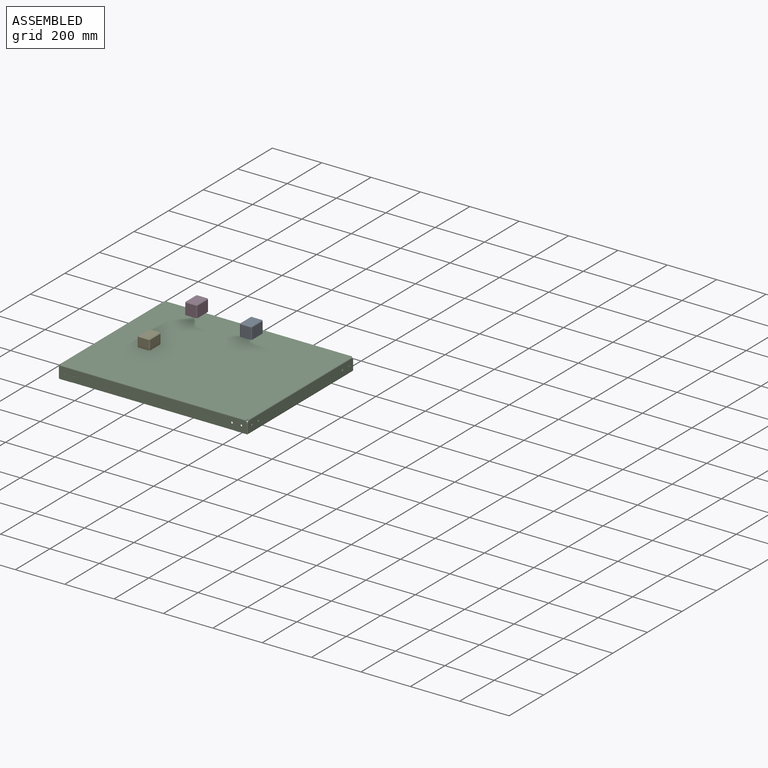
[diagram: assembled view]
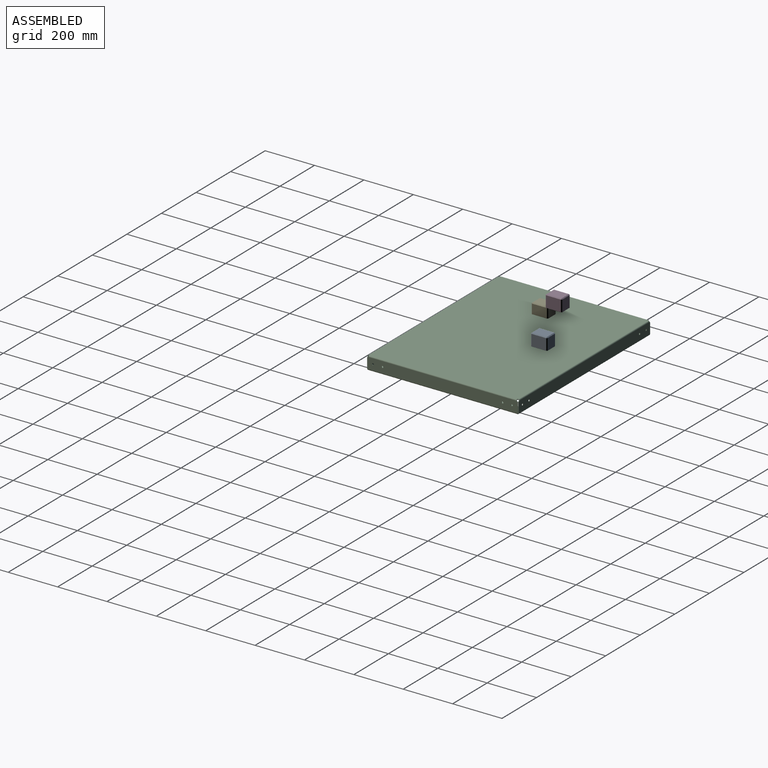
[diagram: assembled view, second angle]
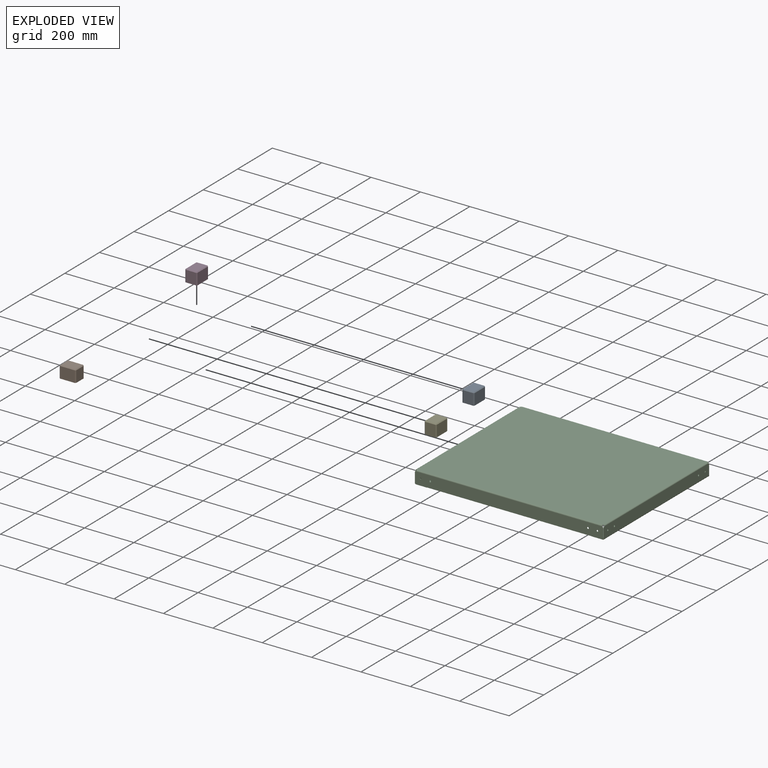
[diagram: exploded view]
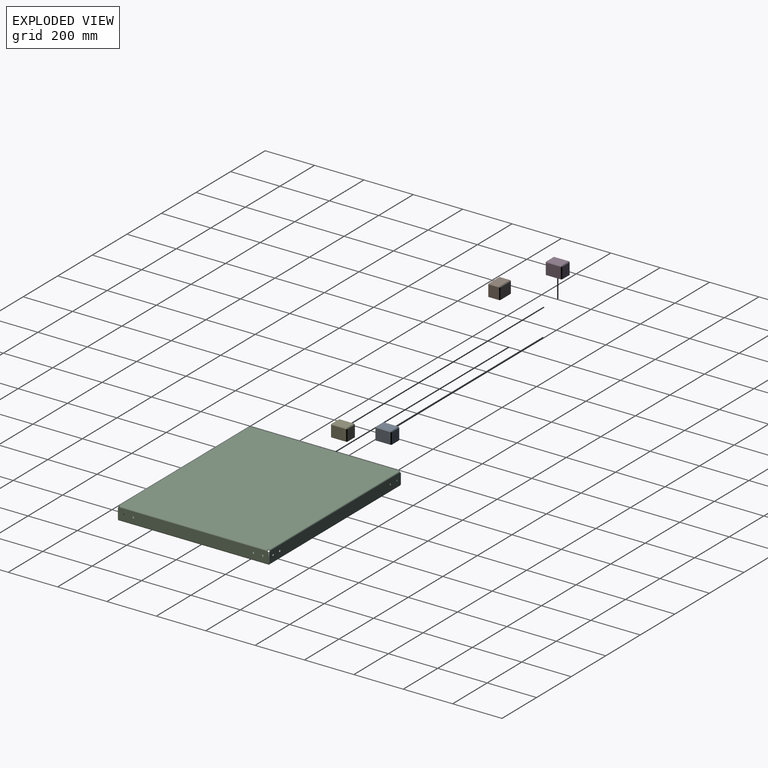
[diagram: exploded view, second angle]
ASSEMBLY  parts=5 mates=2
PART A: 18 faces, bbox 49.2x66.7x49.2 mm
  f0: plane 60.33x46.04mm, normal (1,0,0), area 2777.2mm2, adj f3,f6,f8,f9
  f1: plane 60.33x42.86mm, normal (0,0,1), area 2585.7mm2, adj f9,f10,f14,f15
  f2: plane 60.33x46.04mm, normal (-1,0,0), area 2777.2mm2, adj f3,f11,f15,f17
  f3: plane 66.68x49.21mm, normal (0,0,-1), area 3261.1mm2, adj f0,f2,f4,f5,f6,f8,f11,f17
  f4: plane 46.04x42.86mm, normal (0,1,0), area 1973.3mm2, adj f3,f8,f14,f17
  f5: plane 46.04x42.86mm, normal (0,-1,0), area 1973.3mm2, adj f3,f6,f10,f11
  f6: plane 46.04x3.18mm, normal (0.71,-0.71,0), area 206.7mm2, adj f0,f3,f5,f7
  f7: plane 3.18x3.18mm, normal (0.58,-0.58,0.58), area 8.7mm2, adj f6,f9,f10
  f8: plane 46.04x3.18mm, normal (0.71,0.71,0), area 206.7mm2, adj f0,f3,f4,f12
  f9: plane 60.33x3.18mm, normal (0.71,0,0.71), area 270.9mm2, adj f0,f1,f7,f12
  f10: plane 42.86x3.18mm, normal (0,-0.71,0.71), area 192.5mm2, adj f1,f5,f7,f13
  f11: plane 46.04x3.18mm, normal (-0.71,-0.71,0), area 206.7mm2, adj f2,f3,f5,f13
  f12: plane 3.18x3.18mm, normal (0.58,0.58,0.58), area 8.7mm2, adj f8,f9,f14
  f13: plane 3.18x3.18mm, normal (-0.58,-0.58,0.58), area 8.7mm2, adj f10,f11,f15
  f14: plane 42.86x3.18mm, normal (0,0.71,0.71), area 192.5mm2, adj f1,f4,f12,f16
  f15: plane 60.33x3.18mm, normal (-0.71,0,0.71), area 270.9mm2, adj f1,f2,f13,f16
  f16: plane 3.18x3.18mm, normal (-0.58,0.58,0.58), area 8.7mm2, adj f14,f15,f17
  f17: plane 46.04x3.18mm, normal (-0.71,0.71,0), area 206.7mm2, adj f2,f3,f4,f16
PART B: same geometry as A
PART C: 102 faces, bbox 766x613.6x53.2 mm
  f0: plane 41x1.98mm, normal (1,0,0), area 81.2mm2, adj f7,f8,f10,f11
  f1: plane 41x1.98mm, normal (-1,0,0), area 81.2mm2, adj f7,f8,f9,f12
  f2: plane 754.63x1.98mm, normal (0,0,-1), area 1495.1mm2, adj f7,f8,f9,f10
  f3: cylinder r=3.56mm len=7.11mm, axis (0,-1,0), area 44.3mm2, adj f7,f8
  f4: cylinder r=3.56mm len=7.11mm, axis (0,-1,0), area 44.3mm2, adj f7,f8
  f5: cylinder r=3.56mm len=7.11mm, axis (0,-1,0), area 44.3mm2, adj f7,f8
  f6: cylinder r=3.56mm len=7.11mm, axis (0,-1,0), area 44.3mm2, adj f7,f8
  f7: plane 760.98x46.93mm, normal (0,1,0), area 35532.5mm2, adj f0,f1,f2,f3,f4,f5,f6,f9
  f8: plane 760.98x46.93mm, normal (0,-1,0), area 35532.5mm2, adj f0,f1,f2,f3,f4,f5,f6,f9
  f9: cylinder r=3.17mm len=3.18mm, axis (0,-1,0), area 9.9mm2, adj f1,f2,f7,f8
  f10: cylinder r=3.17mm len=3.18mm, axis (0,1,0), area 9.9mm2, adj f0,f2,f7,f8
  f11: cylinder r=5.29mm len=3.95mm, axis (0,-1,0), area 9.9mm2, adj f0,f7,f8,f20
  f12: cylinder r=5.29mm len=3.95mm, axis (0,-1,0), area 9.9mm2, adj f1,f7,f8,f19
  f13: plane 757.43x605.03mm, normal (0,0,1), area 458253.8mm2, adj f15,f16,f17,f18,f21,f38,f69,f100
  f14: plane 757.43x605.03mm, normal (0,0,-1), area 458253.8mm2, adj f15,f16,f17,f18,f22,f39,f70,f101
  f15: cylinder r=5.29mm len=2.17mm, axis (0,0,-1), area 6.2mm2, adj f13,f14,f20,f68
  f16: cylinder r=5.29mm len=2.17mm, axis (0,0,-1), area 6.2mm2, adj f13,f14,f19,f99
  f17: cylinder r=5.29mm len=2.17mm, axis (0,0,-1), area 6.2mm2, adj f13,f14,f36,f98
  f18: cylinder r=5.29mm len=2.17mm, axis (0,0,-1), area 6.2mm2, adj f13,f14,f37,f67
  f19: bspline ~4.27x4.27mm, area 10.6mm2, adj f12,f16,f21,f22
  f20: bspline ~4.27x4.27mm, area 10.6mm2, adj f11,f15,f21,f22
  f21: cylinder r=4.27mm len=753.08mm, axis (-1,0,0), area 5042.2mm2, adj f7,f13,f19,f20
  f22: cylinder r=2.29mm len=753.08mm, axis (-1,0,0), area 2701.2mm2, adj f8,f14,f19,f20
  f23: plane 41x1.98mm, normal (-1,0,0), area 81.2mm2, adj f25,f31,f32,f34
  f24: plane 41x1.98mm, normal (1,0,0), area 81.2mm2, adj f25,f31,f33,f35
  f25: plane 760.98x46.93mm, normal (0,-1,0), area 35532.5mm2, adj f23,f24,f26,f27,f28,f29,f30,f32
  f26: plane 754.63x1.98mm, normal (0,0,-1), area 1495.1mm2, adj f25,f31,f32,f33
  f27: cylinder r=3.56mm len=7.11mm, axis (0,-1,0), area 44.3mm2, adj f25,f31
  f28: cylinder r=3.56mm len=7.11mm, axis (0,-1,0), area 44.3mm2, adj f25,f31
  f29: cylinder r=3.56mm len=7.11mm, axis (0,-1,0), area 44.3mm2, adj f25,f31
  f30: cylinder r=3.56mm len=7.11mm, axis (0,-1,0), area 44.3mm2, adj f25,f31
  f31: plane 760.98x46.93mm, normal (0,1,0), area 35532.5mm2, adj f23,f24,f26,f27,f28,f29,f30,f32
  f32: cylinder r=3.17mm len=3.18mm, axis (0,1,0), area 9.9mm2, adj f23,f25,f26,f31
  f33: cylinder r=3.17mm len=3.18mm, axis (0,-1,0), area 9.9mm2, adj f24,f25,f26,f31
  f34: cylinder r=5.29mm len=3.95mm, axis (0,1,0), area 9.9mm2, adj f23,f25,f31,f36
  f35: cylinder r=5.29mm len=3.95mm, axis (0,1,0), area 9.9mm2, adj f24,f25,f31,f37
  f36: bspline ~4.27x4.27mm, area 10.6mm2, adj f17,f34,f38,f39
  f37: bspline ~4.27x4.27mm, area 10.6mm2, adj f18,f35,f38,f39
  f38: cylinder r=4.27mm len=753.08mm, axis (-1,0,0), area 5042.2mm2, adj f13,f25,f36,f37
  f39: cylinder r=2.29mm len=753.08mm, axis (-1,0,0), area 2701.2mm2, adj f14,f31,f36,f37
  f40: plane 608.58x1.98mm, normal (-1,0,0), area 1205.7mm2, adj f41,f50,f51,f52
  f41: plane 46.53x1.98mm, normal (0,1,0), area 92.2mm2, adj f40,f51,f52,f53
  f42: cylinder r=3.38mm len=6.76mm, axis (0,0,-1), area 42.1mm2, adj f51,f52
  f43: cylinder r=3.38mm len=6.76mm, axis (0,0,-1), area 42.1mm2, adj f51,f52
  f44: cylinder r=3.38mm len=6.76mm, axis (0,0,-1), area 42.1mm2, adj f51,f52
  f45: cylinder r=3.38mm len=6.76mm, axis (0,0,-1), area 42.1mm2, adj f51,f52
  f46: cylinder r=3.38mm len=6.76mm, axis (0,0,-1), area 42.1mm2, adj f51,f52
  f47: cylinder r=3.38mm len=6.76mm, axis (0,0,-1), area 42.1mm2, adj f51,f52
  f48: cylinder r=3.38mm len=6.76mm, axis (0,0,-1), area 42.1mm2, adj f51,f52
  f49: cylinder r=3.38mm len=6.76mm, axis (0,0,-1), area 42.1mm2, adj f51,f52
  f50: plane 46.53x1.98mm, normal (0,-1,0), area 92.2mm2, adj f40,f51,f52,f54
  f51: plane 608.58x46.53mm, normal (0,0,-1), area 28032.3mm2, adj f40,f41,f42,f43,f44,f45,f46,f47
  f52: plane 608.58x46.53mm, normal (0,0,1), area 28032.3mm2, adj f40,f41,f42,f43,f44,f45,f46,f47
  f53: plane 4.27x4.27mm, normal (0,1,0), area 10.2mm2, adj f41,f55,f56,f58
  f54: plane 4.27x4.27mm, normal (0,-1,0), area 10.2mm2, adj f50,f55,f56,f57
  f55: cylinder r=4.27mm len=608.58mm, axis (0,1,0), area 4079.3mm2, adj f51,f53,f54,f59
  f56: cylinder r=2.29mm len=608.58mm, axis (0,1,0), area 2185.3mm2, adj f52,f53,f54,f64
  f57: plane 41.89x1.98mm, normal (0,-1,0), area 83mm2, adj f54,f59,f64,f65
  f58: plane 41.89x1.98mm, normal (0,1,0), area 83mm2, adj f53,f59,f64,f66
  f59: plane 608.58x44.64mm, normal (1,0,0), area 26994mm2, adj f55,f57,f58,f60,f61,f62,f63,f65
  f60: cylinder r=3.56mm len=7.11mm, axis (1,0,0), area 44.3mm2, adj f59,f64
  f61: cylinder r=3.56mm len=7.11mm, axis (1,0,0), area 44.3mm2, adj f59,f64
  f62: cylinder r=3.56mm len=7.11mm, axis (1,0,0), area 44.3mm2, adj f59,f64
  f63: cylinder r=3.56mm len=7.11mm, axis (1,0,0), area 44.3mm2, adj f59,f64
  f64: plane 608.58x44.64mm, normal (-1,0,0), area 26994mm2, adj f56,f57,f58,f60,f61,f62,f63,f65
  f65: cylinder r=5.29mm len=3.95mm, axis (-1,0,0), area 9.9mm2, adj f57,f59,f64,f67
  f66: cylinder r=5.29mm len=3.95mm, axis (-1,0,0), area 9.9mm2, adj f58,f59,f64,f68
  f67: bspline ~4.27x4.27mm, area 10.6mm2, adj f18,f65,f69,f70
  f68: bspline ~4.27x4.27mm, area 10.6mm2, adj f15,f66,f69,f70
  f69: cylinder r=4.27mm len=600.68mm, axis (0,-1,0), area 4020.7mm2, adj f13,f59,f67,f68
  f70: cylinder r=2.29mm len=600.68mm, axis (0,-1,0), area 2153.9mm2, adj f14,f64,f67,f68
  f71: plane 608.58x1.98mm, normal (1,0,0), area 1205.7mm2, adj f72,f81,f82,f83
  f72: plane 46.53x1.98mm, normal (0,-1,0), area 92.2mm2, adj f71,f82,f83,f84
  f73: cylinder r=3.38mm len=6.76mm, axis (0,0,-1), area 42.1mm2, adj f82,f83
  f74: cylinder r=3.38mm len=6.76mm, axis (0,0,-1), area 42.1mm2, adj f82,f83
  f75: cylinder r=3.38mm len=6.76mm, axis (0,0,-1), area 42.1mm2, adj f82,f83
  f76: cylinder r=3.38mm len=6.76mm, axis (0,0,-1), area 42.1mm2, adj f82,f83
  f77: cylinder r=3.38mm len=6.76mm, axis (0,0,-1), area 42.1mm2, adj f82,f83
  f78: cylinder r=3.38mm len=6.76mm, axis (0,0,-1), area 42.1mm2, adj f82,f83
  f79: cylinder r=3.38mm len=6.76mm, axis (0,0,-1), area 42.1mm2, adj f82,f83
  f80: cylinder r=3.38mm len=6.76mm, axis (0,0,-1), area 42.1mm2, adj f82,f83
  f81: plane 46.53x1.98mm, normal (0,1,0), area 92.2mm2, adj f71,f82,f83,f85
  f82: plane 608.58x46.53mm, normal (0,0,-1), area 28032.3mm2, adj f71,f72,f73,f74,f75,f76,f77,f78
  f83: plane 608.58x46.53mm, normal (0,0,1), area 28032.3mm2, adj f71,f72,f73,f74,f75,f76,f77,f78
  f84: plane 4.27x4.27mm, normal (0,-1,0), area 10.2mm2, adj f72,f86,f87,f88
  f85: plane 4.27x4.27mm, normal (0,1,0), area 10.2mm2, adj f81,f86,f87,f89
  f86: cylinder r=4.27mm len=608.58mm, axis (0,-1,0), area 4079.3mm2, adj f82,f84,f85,f94
  f87: cylinder r=2.29mm len=608.58mm, axis (0,-1,0), area 2185.3mm2, adj f83,f84,f85,f95
  f88: plane 41.89x1.98mm, normal (0,-1,0), area 83mm2, adj f84,f94,f95,f97
  f89: plane 41.89x1.98mm, normal (0,1,0), area 83mm2, adj f85,f94,f95,f96
  f90: cylinder r=3.56mm len=7.11mm, axis (1,0,0), area 44.3mm2, adj f94,f95
  f91: cylinder r=3.56mm len=7.11mm, axis (1,0,0), area 44.3mm2, adj f94,f95
  f92: cylinder r=3.56mm len=7.11mm, axis (1,0,0), area 44.3mm2, adj f94,f95
  f93: cylinder r=3.56mm len=7.11mm, axis (1,0,0), area 44.3mm2, adj f94,f95
  f94: plane 608.58x44.64mm, normal (-1,0,0), area 26994mm2, adj f86,f88,f89,f90,f91,f92,f93,f96
  f95: plane 608.58x44.64mm, normal (1,0,0), area 26994mm2, adj f87,f88,f89,f90,f91,f92,f93,f96
  f96: cylinder r=5.29mm len=3.95mm, axis (1,0,0), area 9.9mm2, adj f89,f94,f95,f99
  f97: cylinder r=5.29mm len=3.95mm, axis (1,0,0), area 9.9mm2, adj f88,f94,f95,f98
  f98: bspline ~4.27x4.27mm, area 10.6mm2, adj f17,f97,f100,f101
  f99: bspline ~4.27x4.27mm, area 10.6mm2, adj f16,f96,f100,f101
  f100: cylinder r=4.27mm len=600.68mm, axis (0,-1,0), area 4020.7mm2, adj f13,f94,f98,f99
  f101: cylinder r=2.29mm len=600.68mm, axis (0,-1,0), area 2153.9mm2, adj f14,f95,f98,f99
PART D: same geometry as A
PART E: same geometry as A
PLACE A t=(117.47,168.39,150.84)mm
PLACE B rot(axis=(0,0,-1),90deg) t=(-287.71,-291.6,59.56)mm
PLACE C t=(59.96,-11.4,34.96)mm fixed
PLACE D t=(-58.82,104.29,207.38)mm
PLACE E t=(-161.17,-24.03,103.52)mm
MATE planar B.f5 <-> C.f95  axis (-1,0,0) through (-321.04,-291.6,57.98)mm
MATE planar B.f1 <-> C.f14  axis (0,0,1) through (-287.71,-291.6,84.17)mm
